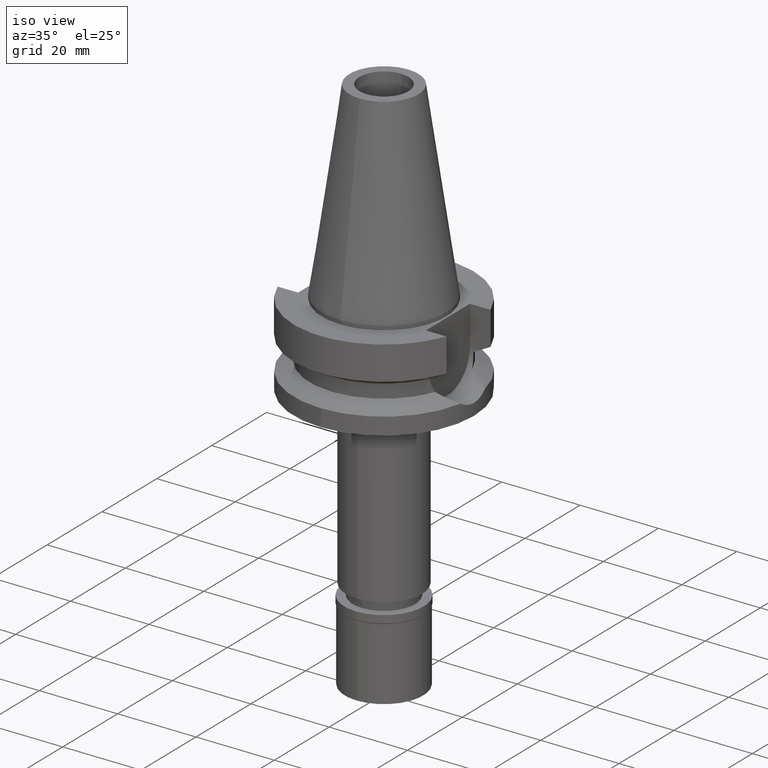
[diagram: clean part render]
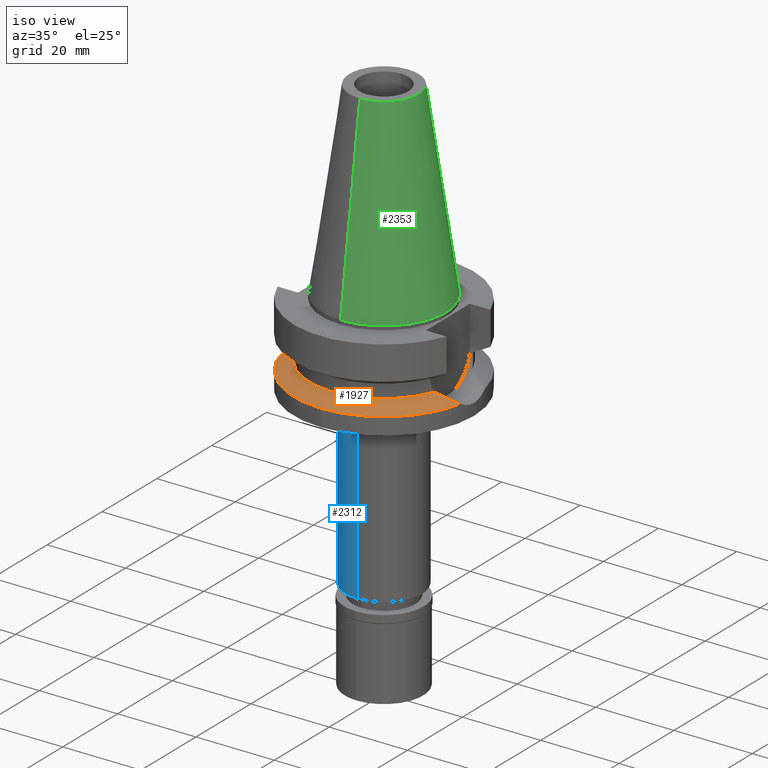
[diagram: same view with three faces highlighted in distinct colors, each labeled with its STEP entity id]
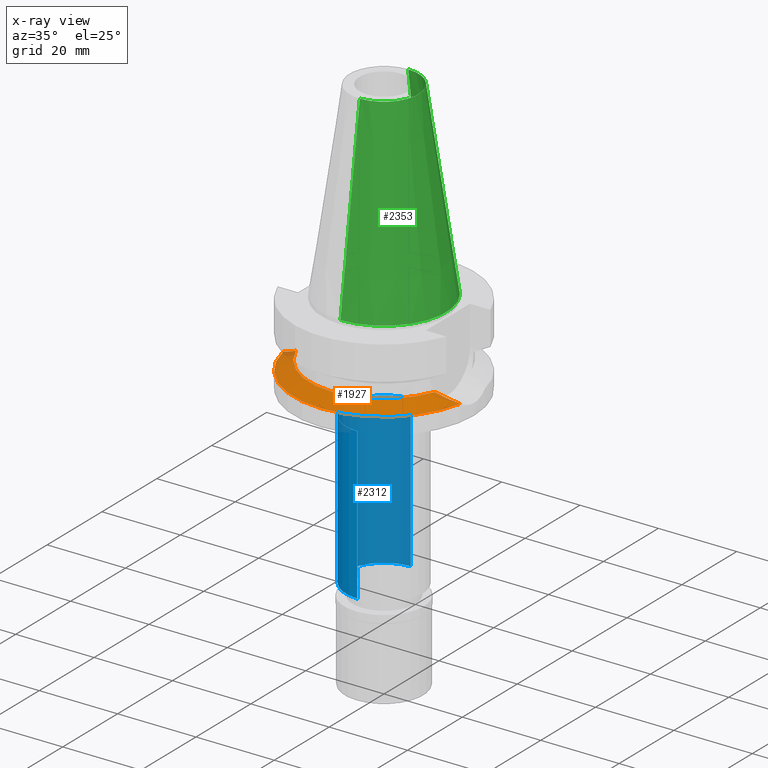
[diagram: x-ray of the same camera — body ghosted, the three highlighted faces saturated]
A machine part, iso view with three faces highlighted in distinct colors.
The next image is the same camera in x-ray (body ghosted, the three faces saturated) — at least one of them is partly hidden behind the body in this view.
Their STEP definitions:

[orange] entity #1927 — the highlighted conical surface has half-angle 60 deg.
#110 = FACE_OUTER_BOUND ( 'NONE', #1133, .T. ) ;
#146 = CARTESIAN_POINT ( 'NONE',  ( 21.37344794600975462, -5.343258989401716619, -17.05846002345789714 ) ) ;
#167 = CARTESIAN_POINT ( 'NONE',  ( 19.77328210350308879, -6.137069160749387464, -16.28355951935576940 ) ) ;
#212 = EDGE_CURVE ( 'NONE', #2899, #2838, #1152, .T. ) ;
#310 = DIRECTION ( 'NONE',  ( 0.0000000000000000000, -1.000000000000000000, 0.0000000000000000000 ) ) ;
#345 = CARTESIAN_POINT ( 'NONE',  ( 22.55786346208000026, -4.488072640470000430, -17.63279163029000074 ) ) ;
#440 = AXIS2_PLACEMENT_3D ( 'NONE', #1462, #1755, #310 ) ;
#476 = DIRECTION ( 'NONE',  ( 0.0000000000000000000, -1.000000000000000000, 0.0000000000000000000 ) ) ;
#561 = CARTESIAN_POINT ( 'NONE',  ( -17.75736593456000278, -6.758398853743999624, -15.32339055352999857 ) ) ;
#591 = CARTESIAN_POINT ( 'NONE',  ( 22.55786346208000026, -4.488072640470000430, -17.63279163029000074 ) ) ;
#668 = CARTESIAN_POINT ( 'NONE',  ( -21.37344794601115439, -5.343258989401356018, -17.05846002345812096 ) ) ;
#839 = ORIENTED_EDGE ( 'NONE', *, *, #1575, .F. ) ;
#913 = ORIENTED_EDGE ( 'NONE', *, *, #1875, .F. ) ;
#934 = CIRCLE ( 'NONE', #2668, 23.00000000000000000 ) ;
#1010 = CARTESIAN_POINT ( 'NONE',  ( -19.77328210350448501, -6.137069160749141439, -16.28355951935611756 ) ) ;
#1011 = CARTESIAN_POINT ( 'NONE',  ( 0.0000000000000000000, -23.00000000000000000, -17.63279163029000074 ) ) ;
#1133 = EDGE_LOOP ( 'NONE', ( #1458, #913, #839, #2951, #2007 ) ) ;
#1152 = B_SPLINE_CURVE_WITH_KNOTS ( 'NONE', 3,
 ( #2801, #668, #1010, #561 ),
 .UNSPECIFIED., .F., .F.,
 ( 4, 4 ),
 ( 0.0000000000000000000, 1.000000000000000000 ),
 .UNSPECIFIED. ) ;
#1336 = EDGE_CURVE ( 'NONE', #1537, #2899, #934, .T. ) ;
#1380 = AXIS2_PLACEMENT_3D ( 'NONE', #1966, #1988, #1482 ) ;
#1458 = ORIENTED_EDGE ( 'NONE', *, *, #1336, .F. ) ;
#1462 = CARTESIAN_POINT ( 'NONE',  ( 0.0000000000000000000, 1.022848384030000006E-14, -16.47809109191000232 ) ) ;
#1482 = DIRECTION ( 'NONE',  ( 0.0000000000000000000, -1.000000000000000000, 0.0000000000000000000 ) ) ;
#1537 = VERTEX_POINT ( 'NONE', #1011 ) ;
#1569 = CARTESIAN_POINT ( 'NONE',  ( -17.75736593456000278, -6.758398853743999624, -15.32339055352999857 ) ) ;
#1575 = EDGE_CURVE ( 'NONE', #2846, #2582, #2748, .T. ) ;
#1646 = DIRECTION ( 'NONE',  ( 0.0000000000000000000, 0.0000000000000000000, -1.000000000000000000 ) ) ;
#1755 = DIRECTION ( 'NONE',  ( 0.0000000000000000000, 0.0000000000000000000, -1.000000000000000000 ) ) ;
#1811 = CONICAL_SURFACE ( 'NONE', #440, 21.00000000000000000, 1.047197551196400456 ) ;
#1841 = DIRECTION ( 'NONE',  ( 0.0000000000000000000, 0.0000000000000000000, -1.000000000000000000 ) ) ;
#1875 = EDGE_CURVE ( 'NONE', #2582, #1537, #2112, .T. ) ;
#1927 = ADVANCED_FACE ( 'NONE', ( #110 ), #1811, .T. ) ;
#1966 = CARTESIAN_POINT ( 'NONE',  ( 0.0000000000000000000, 1.022848384030000006E-14, -15.32339055352999857 ) ) ;
#1988 = DIRECTION ( 'NONE',  ( 0.0000000000000000000, 0.0000000000000000000, 1.000000000000000000 ) ) ;
#2007 = ORIENTED_EDGE ( 'NONE', *, *, #212, .F. ) ;
#2093 = CARTESIAN_POINT ( 'NONE',  ( 0.0000000000000000000, 1.022848384030000006E-14, -17.63279163029000074 ) ) ;
#2112 = CIRCLE ( 'NONE', #2972, 23.00000000000001066 ) ;
#2288 = EDGE_CURVE ( 'NONE', #2838, #2846, #2519, .T. ) ;
#2289 = CARTESIAN_POINT ( 'NONE',  ( 0.0000000000000000000, 1.022848384030000006E-14, -17.63279163029000074 ) ) ;
#2327 = DIRECTION ( 'NONE',  ( 0.9807766722643714852, -0.1951335930638943839, 0.0000000000000000000 ) ) ;
#2508 = CARTESIAN_POINT ( 'NONE',  ( 17.75736593456000278, -6.758398853743999624, -15.32339055352999857 ) ) ;
#2519 = CIRCLE ( 'NONE', #1380, 19.00000000000000000 ) ;
#2545 = CARTESIAN_POINT ( 'NONE',  ( -22.55786346208000026, -4.488072640470000430, -17.63279163029000074 ) ) ;
#2582 = VERTEX_POINT ( 'NONE', #345 ) ;
#2668 = AXIS2_PLACEMENT_3D ( 'NONE', #2289, #1646, #476 ) ;
#2689 = CARTESIAN_POINT ( 'NONE',  ( 17.75736593456000278, -6.758398853743999624, -15.32339055352999857 ) ) ;
#2748 = B_SPLINE_CURVE_WITH_KNOTS ( 'NONE', 3,
 ( #2689, #167, #146, #591 ),
 .UNSPECIFIED., .F., .F.,
 ( 4, 4 ),
 ( 0.0000000000000000000, 1.000000000000000000 ),
 .UNSPECIFIED. ) ;
#2801 = CARTESIAN_POINT ( 'NONE',  ( -22.55786346208000026, -4.488072640470000430, -17.63279163029000074 ) ) ;
#2838 = VERTEX_POINT ( 'NONE', #1569 ) ;
#2846 = VERTEX_POINT ( 'NONE', #2508 ) ;
#2899 = VERTEX_POINT ( 'NONE', #2545 ) ;
#2951 = ORIENTED_EDGE ( 'NONE', *, *, #2288, .F. ) ;
#2972 = AXIS2_PLACEMENT_3D ( 'NONE', #2093, #1841, #2327 ) ;

[blue] entity #2312 — the highlighted cylindrical surface (partial cylindrical patch) has radius 9.75 mm, axis along (0, 0, -1).
#5 = CIRCLE ( 'NONE', #51, 9.750000000000000000 ) ;
#27 = VERTEX_POINT ( 'NONE', #226 ) ;
#51 = AXIS2_PLACEMENT_3D ( 'NONE', #683, #1373, #876 ) ;
#116 = ORIENTED_EDGE ( 'NONE', *, *, #1481, .T. ) ;
#204 = AXIS2_PLACEMENT_3D ( 'NONE', #3021, #616, #206 ) ;
#206 = DIRECTION ( 'NONE',  ( 0.0000000000000000000, -1.000000000000000000, 0.0000000000000000000 ) ) ;
#207 = EDGE_LOOP ( 'NONE', ( #1745, #1711, #116, #2432 ) ) ;
#226 = CARTESIAN_POINT ( 'NONE',  ( 0.0000000000000000000, 9.750000000000000000, -28.00000000000000000 ) ) ;
#301 = DIRECTION ( 'NONE',  ( 0.0000000000000000000, 0.0000000000000000000, -1.000000000000000000 ) ) ;
#371 = VERTEX_POINT ( 'NONE', #1653 ) ;
#485 = CIRCLE ( 'NONE', #2867, 9.750000000000000000 ) ;
#616 = DIRECTION ( 'NONE',  ( 0.0000000000000000000, 0.0000000000000000000, -1.000000000000000000 ) ) ;
#638 = VECTOR ( 'NONE', #752, 1000.000000000000000 ) ;
#683 = CARTESIAN_POINT ( 'NONE',  ( 0.0000000000000000000, 1.897222821238999746E-14, -66.60000000000000853 ) ) ;
#747 = CARTESIAN_POINT ( 'NONE',  ( 0.0000000000000000000, 0.0000000000000000000, -28.00000000000000000 ) ) ;
#752 = DIRECTION ( 'NONE',  ( 0.0000000000000000000, 0.0000000000000000000, -1.000000000000000000 ) ) ;
#876 = DIRECTION ( 'NONE',  ( 0.0000000000000000000, 1.000000000000000000, 0.0000000000000000000 ) ) ;
#935 = DIRECTION ( 'NONE',  ( 0.0000000000000000000, 0.0000000000000000000, -1.000000000000000000 ) ) ;
#964 = EDGE_CURVE ( 'NONE', #3060, #2317, #5, .T. ) ;
#1018 = VECTOR ( 'NONE', #935, 1000.000000000000000 ) ;
#1042 = FACE_OUTER_BOUND ( 'NONE', #207, .T. ) ;
#1198 = CARTESIAN_POINT ( 'NONE',  ( 0.0000000000000000000, 9.750000000000000000, -66.60000000000000853 ) ) ;
#1270 = LINE ( 'NONE', #2214, #638 ) ;
#1292 = CYLINDRICAL_SURFACE ( 'NONE', #204, 9.750000000000000000 ) ;
#1373 = DIRECTION ( 'NONE',  ( 0.0000000000000000000, 0.0000000000000000000, 1.000000000000000000 ) ) ;
#1481 = EDGE_CURVE ( 'NONE', #371, #27, #485, .T. ) ;
#1653 = CARTESIAN_POINT ( 'NONE',  ( 0.0000000000000000000, -9.750000000000000000, -28.00000000000000000 ) ) ;
#1683 = DIRECTION ( 'NONE',  ( 0.0000000000000000000, -1.000000000000000000, 0.0000000000000000000 ) ) ;
#1711 = ORIENTED_EDGE ( 'NONE', *, *, #2019, .F. ) ;
#1745 = ORIENTED_EDGE ( 'NONE', *, *, #964, .T. ) ;
#2019 = EDGE_CURVE ( 'NONE', #371, #2317, #2280, .T. ) ;
#2200 = EDGE_CURVE ( 'NONE', #27, #3060, #1270, .T. ) ;
#2214 = CARTESIAN_POINT ( 'NONE',  ( 0.0000000000000000000, 9.750000000000000000, -28.00000000000000000 ) ) ;
#2280 = LINE ( 'NONE', #2626, #1018 ) ;
#2312 = ADVANCED_FACE ( 'NONE', ( #1042 ), #1292, .T. ) ;
#2317 = VERTEX_POINT ( 'NONE', #3007 ) ;
#2432 = ORIENTED_EDGE ( 'NONE', *, *, #2200, .T. ) ;
#2626 = CARTESIAN_POINT ( 'NONE',  ( 0.0000000000000000000, -9.750000000000000000, -28.00000000000000000 ) ) ;
#2867 = AXIS2_PLACEMENT_3D ( 'NONE', #747, #301, #1683 ) ;
#3007 = CARTESIAN_POINT ( 'NONE',  ( 0.0000000000000000000, -9.750000000000000000, -66.60000000000000853 ) ) ;
#3021 = CARTESIAN_POINT ( 'NONE',  ( 0.0000000000000000000, 1.897222821238999746E-14, 54.91999999999999460 ) ) ;
#3060 = VERTEX_POINT ( 'NONE', #1198 ) ;

[green] entity #2353 — the highlighted conical surface has half-angle 8.297 deg.
#24 = EDGE_CURVE ( 'NONE', #2577, #2874, #1850, .T. ) ;
#98 = AXIS2_PLACEMENT_3D ( 'NONE', #1826, #1129, #231 ) ;
#231 = DIRECTION ( 'NONE',  ( 0.0000000000000000000, 1.000000000000000000, 0.0000000000000000000 ) ) ;
#290 = CARTESIAN_POINT ( 'NONE',  ( 0.0000000000000000000, -15.87500000000000000, -1.953992523339999852E-13 ) ) ;
#399 = CIRCLE ( 'NONE', #779, 15.87500000000000000 ) ;
#562 = CARTESIAN_POINT ( 'NONE',  ( 0.0000000000000000000, 1.521011324540999938E-14, -3.694822225953000089E-13 ) ) ;
#720 = LINE ( 'NONE', #1114, #2466 ) ;
#745 = CARTESIAN_POINT ( 'NONE',  ( 0.0000000000000000000, 8.816791732783000768, 48.39999999999999858 ) ) ;
#779 = AXIS2_PLACEMENT_3D ( 'NONE', #562, #2005, #1772 ) ;
#1021 = CONICAL_SURFACE ( 'NONE', #1960, 12.34589586639000025, 0.1448099680379422438 ) ;
#1114 = CARTESIAN_POINT ( 'NONE',  ( 0.0000000000000000000, -8.816791732783000768, 48.39999999999999858 ) ) ;
#1129 = DIRECTION ( 'NONE',  ( 0.0000000000000000000, 0.0000000000000000000, -1.000000000000000000 ) ) ;
#1132 = CARTESIAN_POINT ( 'NONE',  ( 0.0000000000000000000, 1.521011324540999938E-14, 24.19999999999999929 ) ) ;
#1189 = ORIENTED_EDGE ( 'NONE', *, *, #24, .F. ) ;
#1261 = EDGE_CURVE ( 'NONE', #2577, #2720, #1908, .T. ) ;
#1327 = EDGE_CURVE ( 'NONE', #2720, #1511, #720, .T. ) ;
#1511 = VERTEX_POINT ( 'NONE', #290 ) ;
#1576 = DIRECTION ( 'NONE',  ( 0.0000000000000000000, -1.000000000000000000, 0.0000000000000000000 ) ) ;
#1585 = EDGE_CURVE ( 'NONE', #2874, #1511, #399, .T. ) ;
#1772 = DIRECTION ( 'NONE',  ( 0.0000000000000000000, 1.000000000000000000, 0.0000000000000000000 ) ) ;
#1803 = CARTESIAN_POINT ( 'NONE',  ( 0.0000000000000000000, 15.87500000000000000, -1.953992523339999852E-13 ) ) ;
#1826 = CARTESIAN_POINT ( 'NONE',  ( 0.0000000000000000000, 1.521011324540999938E-14, 48.39999999999999858 ) ) ;
#1842 = DIRECTION ( 'NONE',  ( 0.0000000000000000000, -0.1443043893539925626, -0.9895333461855498891 ) ) ;
#1846 = DIRECTION ( 'NONE',  ( 0.0000000000000000000, 0.0000000000000000000, -1.000000000000000000 ) ) ;
#1850 = LINE ( 'NONE', #2087, #2205 ) ;
#1908 = CIRCLE ( 'NONE', #98, 8.816791732783000768 ) ;
#1960 = AXIS2_PLACEMENT_3D ( 'NONE', #1132, #1846, #1576 ) ;
#2005 = DIRECTION ( 'NONE',  ( 0.0000000000000000000, 0.0000000000000000000, -1.000000000000000000 ) ) ;
#2087 = CARTESIAN_POINT ( 'NONE',  ( 0.0000000000000000000, 8.816791732783000768, 48.39999999999999858 ) ) ;
#2148 = EDGE_LOOP ( 'NONE', ( #2506, #2743, #2560, #1189 ) ) ;
#2205 = VECTOR ( 'NONE', #3043, 1000.000000000000114 ) ;
#2308 = FACE_OUTER_BOUND ( 'NONE', #2148, .T. ) ;
#2353 = ADVANCED_FACE ( 'NONE', ( #2308 ), #1021, .T. ) ;
#2416 = CARTESIAN_POINT ( 'NONE',  ( 0.0000000000000000000, -8.816791732783000768, 48.39999999999999858 ) ) ;
#2466 = VECTOR ( 'NONE', #1842, 1000.000000000000114 ) ;
#2506 = ORIENTED_EDGE ( 'NONE', *, *, #1261, .T. ) ;
#2560 = ORIENTED_EDGE ( 'NONE', *, *, #1585, .F. ) ;
#2577 = VERTEX_POINT ( 'NONE', #745 ) ;
#2720 = VERTEX_POINT ( 'NONE', #2416 ) ;
#2743 = ORIENTED_EDGE ( 'NONE', *, *, #1327, .T. ) ;
#2874 = VERTEX_POINT ( 'NONE', #1803 ) ;
#3043 = DIRECTION ( 'NONE',  ( 0.0000000000000000000, 0.1443043893539925626, -0.9895333461855498891 ) ) ;